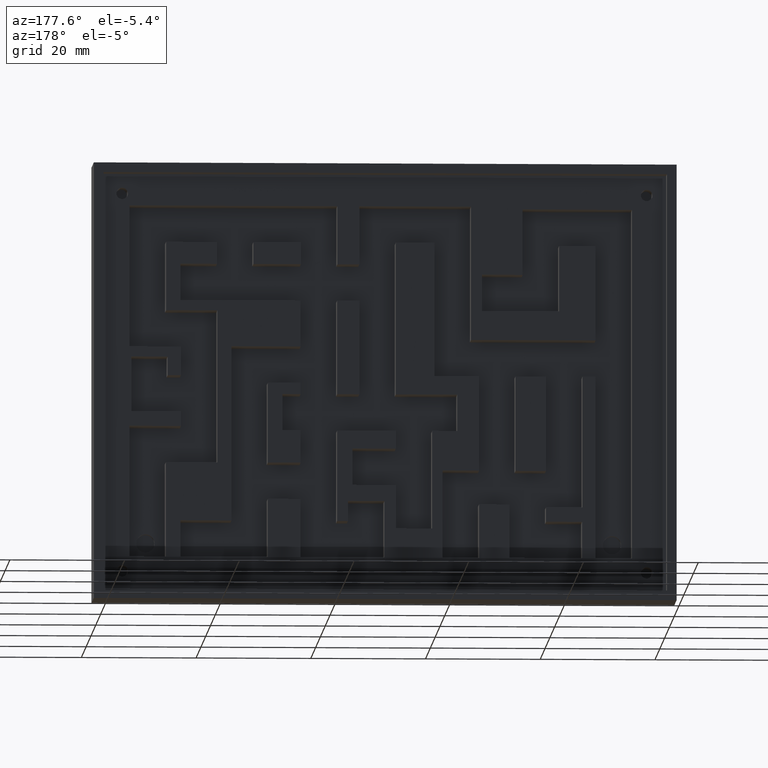
[diagram: clean part render]
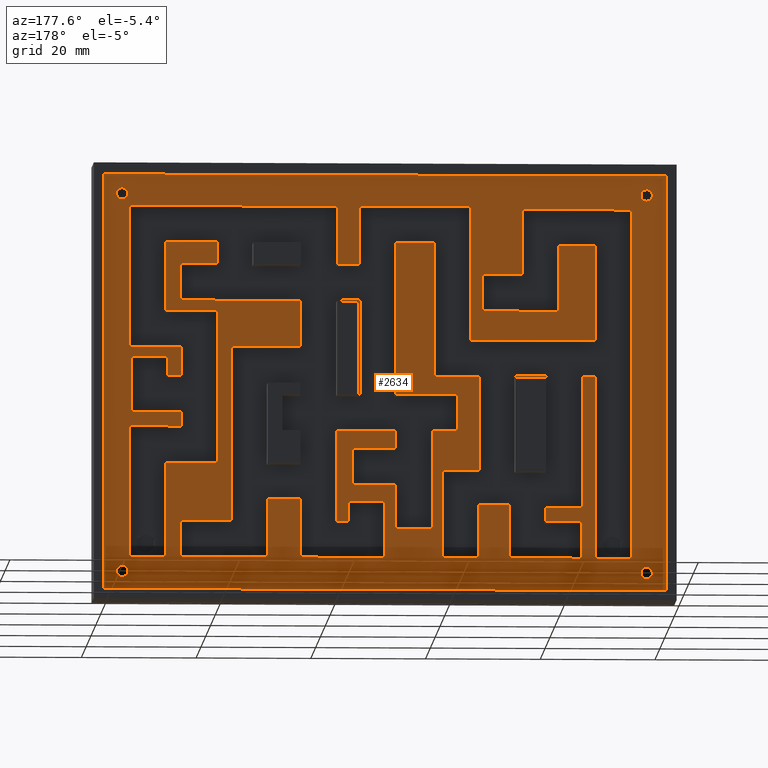
[diagram: same view with one face highlighted and labeled with its STEP entity id]
A machine part, auxiliary view. The second image highlights one B-rep face of the part: STEP entity #2634.
In plain terms, the highlighted planar face has unit normal (0, -1, 0).
Its self-contained STEP definition (entity closure, byte-faithful):
#21=FACE_BOUND('',#313,.T.);
#22=FACE_BOUND('',#314,.T.);
#23=FACE_BOUND('',#315,.T.);
#24=FACE_BOUND('',#316,.T.);
#25=FACE_BOUND('',#317,.T.);
#31=CIRCLE('',#2672,0.0393700787401575);
#33=CIRCLE('',#2676,0.0393700787401573);
#35=CIRCLE('',#2680,0.0393700787401575);
#37=CIRCLE('',#2684,0.0393700787401573);
#170=FACE_OUTER_BOUND('',#312,.T.);
#312=EDGE_LOOP('',(#2235,#2236,#2237,#2238));
#313=EDGE_LOOP('',(#2239));
#314=EDGE_LOOP('',(#2240));
#315=EDGE_LOOP('',(#2241));
#316=EDGE_LOOP('',(#2242));
#317=EDGE_LOOP('',(#2243,#2244,#2245,#2246,#2247,#2248,#2249,#2250,#2251,
#2252,#2253,#2254,#2255,#2256,#2257,#2258,#2259,#2260,#2261,#2262,#2263,
#2264,#2265,#2266,#2267,#2268,#2269,#2270,#2271,#2272,#2273,#2274,#2275,
#2276,#2277,#2278,#2279,#2280,#2281,#2282,#2283,#2284,#2285,#2286,#2287,
#2288,#2289,#2290,#2291,#2292,#2293,#2294,#2295,#2296,#2297,#2298,#2299,
#2300,#2301,#2302,#2303,#2304,#2305,#2306,#2307,#2308,#2309,#2310,#2311,
#2312,#2313,#2314,#2315,#2316,#2317,#2318,#2319,#2320,#2321,#2322,#2323,
#2324,#2325,#2326,#2327,#2328,#2329,#2330));
#331=LINE('',#3467,#685);
#335=LINE('',#3474,#689);
#338=LINE('',#3480,#692);
#340=LINE('',#3483,#694);
#407=LINE('',#3649,#761);
#411=LINE('',#3657,#765);
#414=LINE('',#3663,#768);
#417=LINE('',#3669,#771);
#420=LINE('',#3675,#774);
#423=LINE('',#3681,#777);
#426=LINE('',#3687,#780);
#429=LINE('',#3693,#783);
#432=LINE('',#3699,#786);
#435=LINE('',#3705,#789);
#438=LINE('',#3711,#792);
#441=LINE('',#3717,#795);
#444=LINE('',#3723,#798);
#447=LINE('',#3729,#801);
#450=LINE('',#3735,#804);
#453=LINE('',#3741,#807);
#456=LINE('',#3747,#810);
#459=LINE('',#3753,#813);
#462=LINE('',#3759,#816);
#465=LINE('',#3765,#819);
#468=LINE('',#3771,#822);
#471=LINE('',#3777,#825);
#474=LINE('',#3783,#828);
#477=LINE('',#3789,#831);
#480=LINE('',#3795,#834);
#483=LINE('',#3801,#837);
#486=LINE('',#3807,#840);
#489=LINE('',#3813,#843);
#492=LINE('',#3819,#846);
#495=LINE('',#3825,#849);
#498=LINE('',#3831,#852);
#501=LINE('',#3837,#855);
#504=LINE('',#3843,#858);
#507=LINE('',#3849,#861);
#510=LINE('',#3855,#864);
#513=LINE('',#3861,#867);
#516=LINE('',#3867,#870);
#519=LINE('',#3873,#873);
#522=LINE('',#3879,#876);
#525=LINE('',#3885,#879);
#528=LINE('',#3891,#882);
#531=LINE('',#3897,#885);
#534=LINE('',#3903,#888);
#537=LINE('',#3909,#891);
#540=LINE('',#3915,#894);
#543=LINE('',#3921,#897);
#546=LINE('',#3927,#900);
#549=LINE('',#3933,#903);
#552=LINE('',#3939,#906);
#555=LINE('',#3945,#909);
#558=LINE('',#3951,#912);
#561=LINE('',#3957,#915);
#564=LINE('',#3963,#918);
#567=LINE('',#3969,#921);
#570=LINE('',#3975,#924);
#573=LINE('',#3981,#927);
#576=LINE('',#3987,#930);
#579=LINE('',#3993,#933);
#582=LINE('',#3999,#936);
#585=LINE('',#4005,#939);
#588=LINE('',#4011,#942);
#591=LINE('',#4017,#945);
#594=LINE('',#4023,#948);
#597=LINE('',#4029,#951);
#600=LINE('',#4035,#954);
#603=LINE('',#4041,#957);
#606=LINE('',#4047,#960);
#609=LINE('',#4053,#963);
#612=LINE('',#4059,#966);
#615=LINE('',#4065,#969);
#618=LINE('',#4071,#972);
#621=LINE('',#4077,#975);
#624=LINE('',#4083,#978);
#627=LINE('',#4089,#981);
#630=LINE('',#4095,#984);
#633=LINE('',#4101,#987);
#636=LINE('',#4107,#990);
#639=LINE('',#4113,#993);
#642=LINE('',#4119,#996);
#645=LINE('',#4125,#999);
#648=LINE('',#4131,#1002);
#651=LINE('',#4137,#1005);
#654=LINE('',#4143,#1008);
#657=LINE('',#4149,#1011);
#660=LINE('',#4155,#1014);
#663=LINE('',#4161,#1017);
#666=LINE('',#4167,#1020);
#669=LINE('',#4172,#1023);
#685=VECTOR('',#2813,0.393700787401575);
#689=VECTOR('',#2819,0.393700787401575);
#692=VECTOR('',#2824,0.393700787401575);
#694=VECTOR('',#2828,0.393700787401575);
#761=VECTOR('',#2985,0.393700787401575);
#765=VECTOR('',#2991,0.393700787401575);
#768=VECTOR('',#2996,0.393700787401575);
#771=VECTOR('',#3001,0.393700787401575);
#774=VECTOR('',#3006,0.393700787401575);
#777=VECTOR('',#3011,0.393700787401575);
#780=VECTOR('',#3016,0.393700787401575);
#783=VECTOR('',#3021,0.393700787401575);
#786=VECTOR('',#3026,0.393700787401575);
#789=VECTOR('',#3031,0.393700787401575);
#792=VECTOR('',#3036,0.393700787401575);
#795=VECTOR('',#3041,0.393700787401575);
#798=VECTOR('',#3046,0.393700787401575);
#801=VECTOR('',#3051,0.393700787401575);
#804=VECTOR('',#3056,0.393700787401575);
#807=VECTOR('',#3061,0.393700787401575);
#810=VECTOR('',#3066,0.393700787401575);
#813=VECTOR('',#3071,0.393700787401575);
#816=VECTOR('',#3076,0.393700787401575);
#819=VECTOR('',#3081,0.393700787401575);
#822=VECTOR('',#3086,0.393700787401575);
#825=VECTOR('',#3091,0.393700787401575);
#828=VECTOR('',#3096,0.393700787401575);
#831=VECTOR('',#3101,0.393700787401575);
#834=VECTOR('',#3106,0.393700787401575);
#837=VECTOR('',#3111,0.393700787401575);
#840=VECTOR('',#3116,0.393700787401575);
#843=VECTOR('',#3121,0.393700787401575);
#846=VECTOR('',#3126,0.393700787401575);
#849=VECTOR('',#3131,0.393700787401575);
#852=VECTOR('',#3136,0.393700787401575);
#855=VECTOR('',#3141,0.393700787401575);
#858=VECTOR('',#3146,0.393700787401575);
#861=VECTOR('',#3151,0.393700787401575);
#864=VECTOR('',#3156,0.393700787401575);
#867=VECTOR('',#3161,0.393700787401575);
#870=VECTOR('',#3166,0.393700787401575);
#873=VECTOR('',#3171,0.393700787401575);
#876=VECTOR('',#3176,0.393700787401575);
#879=VECTOR('',#3181,0.393700787401575);
#882=VECTOR('',#3186,0.393700787401575);
#885=VECTOR('',#3191,0.393700787401575);
#888=VECTOR('',#3196,0.393700787401575);
#891=VECTOR('',#3201,0.393700787401575);
#894=VECTOR('',#3206,0.393700787401575);
#897=VECTOR('',#3211,0.393700787401575);
#900=VECTOR('',#3216,0.393700787401575);
#903=VECTOR('',#3221,0.393700787401575);
#906=VECTOR('',#3226,0.393700787401575);
#909=VECTOR('',#3231,0.393700787401575);
#912=VECTOR('',#3236,0.393700787401575);
#915=VECTOR('',#3241,0.393700787401575);
#918=VECTOR('',#3246,0.393700787401575);
#921=VECTOR('',#3251,0.393700787401575);
#924=VECTOR('',#3256,0.393700787401575);
#927=VECTOR('',#3261,0.393700787401575);
#930=VECTOR('',#3266,0.393700787401575);
#933=VECTOR('',#3271,0.393700787401575);
#936=VECTOR('',#3276,0.393700787401575);
#939=VECTOR('',#3281,0.393700787401575);
#942=VECTOR('',#3286,0.393700787401575);
#945=VECTOR('',#3291,0.393700787401575);
#948=VECTOR('',#3296,0.393700787401575);
#951=VECTOR('',#3301,0.393700787401575);
#954=VECTOR('',#3306,0.393700787401575);
#957=VECTOR('',#3311,0.393700787401575);
#960=VECTOR('',#3316,0.393700787401575);
#963=VECTOR('',#3321,0.393700787401575);
#966=VECTOR('',#3326,0.393700787401575);
#969=VECTOR('',#3331,0.393700787401575);
#972=VECTOR('',#3336,0.393700787401575);
#975=VECTOR('',#3341,0.393700787401575);
#978=VECTOR('',#3346,0.393700787401575);
#981=VECTOR('',#3351,0.393700787401575);
#984=VECTOR('',#3356,0.393700787401575);
#987=VECTOR('',#3361,0.393700787401575);
#990=VECTOR('',#3366,0.393700787401575);
#993=VECTOR('',#3371,0.393700787401575);
#996=VECTOR('',#3376,0.393700787401575);
#999=VECTOR('',#3381,0.393700787401575);
#1002=VECTOR('',#3386,0.393700787401575);
#1005=VECTOR('',#3391,0.393700787401575);
#1008=VECTOR('',#3396,0.393700787401575);
#1011=VECTOR('',#3401,0.393700787401575);
#1014=VECTOR('',#3406,0.393700787401575);
#1017=VECTOR('',#3411,0.393700787401575);
#1020=VECTOR('',#3416,0.393700787401575);
#1023=VECTOR('',#3421,0.393700787401575);
#1039=VERTEX_POINT('',#3464);
#1040=VERTEX_POINT('',#3466);
#1042=VERTEX_POINT('',#3472);
#1044=VERTEX_POINT('',#3478);
#1049=VERTEX_POINT('',#3499);
#1051=VERTEX_POINT('',#3506);
#1053=VERTEX_POINT('',#3513);
#1055=VERTEX_POINT('',#3520);
#1097=VERTEX_POINT('',#3647);
#1098=VERTEX_POINT('',#3648);
#1101=VERTEX_POINT('',#3656);
#1103=VERTEX_POINT('',#3662);
#1105=VERTEX_POINT('',#3668);
#1107=VERTEX_POINT('',#3674);
#1109=VERTEX_POINT('',#3680);
#1111=VERTEX_POINT('',#3686);
#1113=VERTEX_POINT('',#3692);
#1115=VERTEX_POINT('',#3698);
#1117=VERTEX_POINT('',#3704);
#1119=VERTEX_POINT('',#3710);
#1121=VERTEX_POINT('',#3716);
#1123=VERTEX_POINT('',#3722);
#1125=VERTEX_POINT('',#3728);
#1127=VERTEX_POINT('',#3734);
#1129=VERTEX_POINT('',#3740);
#1131=VERTEX_POINT('',#3746);
#1133=VERTEX_POINT('',#3752);
#1135=VERTEX_POINT('',#3758);
#1137=VERTEX_POINT('',#3764);
#1139=VERTEX_POINT('',#3770);
#1141=VERTEX_POINT('',#3776);
#1143=VERTEX_POINT('',#3782);
#1145=VERTEX_POINT('',#3788);
#1147=VERTEX_POINT('',#3794);
#1149=VERTEX_POINT('',#3800);
#1151=VERTEX_POINT('',#3806);
#1153=VERTEX_POINT('',#3812);
#1155=VERTEX_POINT('',#3818);
#1157=VERTEX_POINT('',#3824);
#1159=VERTEX_POINT('',#3830);
#1161=VERTEX_POINT('',#3836);
#1163=VERTEX_POINT('',#3842);
#1165=VERTEX_POINT('',#3848);
#1167=VERTEX_POINT('',#3854);
#1169=VERTEX_POINT('',#3860);
#1171=VERTEX_POINT('',#3866);
#1173=VERTEX_POINT('',#3872);
#1175=VERTEX_POINT('',#3878);
#1177=VERTEX_POINT('',#3884);
#1179=VERTEX_POINT('',#3890);
#1181=VERTEX_POINT('',#3896);
#1183=VERTEX_POINT('',#3902);
#1185=VERTEX_POINT('',#3908);
#1187=VERTEX_POINT('',#3914);
#1189=VERTEX_POINT('',#3920);
#1191=VERTEX_POINT('',#3926);
#1193=VERTEX_POINT('',#3932);
#1195=VERTEX_POINT('',#3938);
#1197=VERTEX_POINT('',#3944);
#1199=VERTEX_POINT('',#3950);
#1201=VERTEX_POINT('',#3956);
#1203=VERTEX_POINT('',#3962);
#1205=VERTEX_POINT('',#3968);
#1207=VERTEX_POINT('',#3974);
#1209=VERTEX_POINT('',#3980);
#1211=VERTEX_POINT('',#3986);
#1213=VERTEX_POINT('',#3992);
#1215=VERTEX_POINT('',#3998);
#1217=VERTEX_POINT('',#4004);
#1219=VERTEX_POINT('',#4010);
#1221=VERTEX_POINT('',#4016);
#1223=VERTEX_POINT('',#4022);
#1225=VERTEX_POINT('',#4028);
#1227=VERTEX_POINT('',#4034);
#1229=VERTEX_POINT('',#4040);
#1231=VERTEX_POINT('',#4046);
#1233=VERTEX_POINT('',#4052);
#1235=VERTEX_POINT('',#4058);
#1237=VERTEX_POINT('',#4064);
#1239=VERTEX_POINT('',#4070);
#1241=VERTEX_POINT('',#4076);
#1243=VERTEX_POINT('',#4082);
#1245=VERTEX_POINT('',#4088);
#1247=VERTEX_POINT('',#4094);
#1249=VERTEX_POINT('',#4100);
#1251=VERTEX_POINT('',#4106);
#1253=VERTEX_POINT('',#4112);
#1255=VERTEX_POINT('',#4118);
#1257=VERTEX_POINT('',#4124);
#1259=VERTEX_POINT('',#4130);
#1261=VERTEX_POINT('',#4136);
#1263=VERTEX_POINT('',#4142);
#1265=VERTEX_POINT('',#4148);
#1267=VERTEX_POINT('',#4154);
#1269=VERTEX_POINT('',#4160);
#1271=VERTEX_POINT('',#4166);
#1283=EDGE_CURVE('',#1039,#1040,#331,.T.);
#1287=EDGE_CURVE('',#1042,#1039,#335,.T.);
#1290=EDGE_CURVE('',#1044,#1042,#338,.T.);
#1292=EDGE_CURVE('',#1040,#1044,#340,.T.);
#1299=EDGE_CURVE('',#1049,#1049,#31,.T.);
#1302=EDGE_CURVE('',#1051,#1051,#33,.T.);
#1305=EDGE_CURVE('',#1053,#1053,#35,.T.);
#1308=EDGE_CURVE('',#1055,#1055,#37,.T.);
#1371=EDGE_CURVE('',#1097,#1098,#407,.T.);
#1375=EDGE_CURVE('',#1101,#1097,#411,.T.);
#1378=EDGE_CURVE('',#1103,#1101,#414,.T.);
#1381=EDGE_CURVE('',#1105,#1103,#417,.T.);
#1384=EDGE_CURVE('',#1107,#1105,#420,.T.);
#1387=EDGE_CURVE('',#1109,#1107,#423,.T.);
#1390=EDGE_CURVE('',#1111,#1109,#426,.T.);
#1393=EDGE_CURVE('',#1113,#1111,#429,.T.);
#1396=EDGE_CURVE('',#1115,#1113,#432,.T.);
#1399=EDGE_CURVE('',#1117,#1115,#435,.T.);
#1402=EDGE_CURVE('',#1119,#1117,#438,.T.);
#1405=EDGE_CURVE('',#1121,#1119,#441,.T.);
#1408=EDGE_CURVE('',#1123,#1121,#444,.T.);
#1411=EDGE_CURVE('',#1125,#1123,#447,.T.);
#1414=EDGE_CURVE('',#1127,#1125,#450,.T.);
#1417=EDGE_CURVE('',#1129,#1127,#453,.T.);
#1420=EDGE_CURVE('',#1131,#1129,#456,.T.);
#1423=EDGE_CURVE('',#1133,#1131,#459,.T.);
#1426=EDGE_CURVE('',#1135,#1133,#462,.T.);
#1429=EDGE_CURVE('',#1137,#1135,#465,.T.);
#1432=EDGE_CURVE('',#1139,#1137,#468,.T.);
#1435=EDGE_CURVE('',#1141,#1139,#471,.T.);
#1438=EDGE_CURVE('',#1143,#1141,#474,.T.);
#1441=EDGE_CURVE('',#1145,#1143,#477,.T.);
#1444=EDGE_CURVE('',#1147,#1145,#480,.T.);
#1447=EDGE_CURVE('',#1149,#1147,#483,.T.);
#1450=EDGE_CURVE('',#1151,#1149,#486,.T.);
#1453=EDGE_CURVE('',#1153,#1151,#489,.T.);
#1456=EDGE_CURVE('',#1155,#1153,#492,.T.);
#1459=EDGE_CURVE('',#1157,#1155,#495,.T.);
#1462=EDGE_CURVE('',#1159,#1157,#498,.T.);
#1465=EDGE_CURVE('',#1161,#1159,#501,.T.);
#1468=EDGE_CURVE('',#1163,#1161,#504,.T.);
#1471=EDGE_CURVE('',#1165,#1163,#507,.T.);
#1474=EDGE_CURVE('',#1167,#1165,#510,.T.);
#1477=EDGE_CURVE('',#1169,#1167,#513,.T.);
#1480=EDGE_CURVE('',#1171,#1169,#516,.T.);
#1483=EDGE_CURVE('',#1173,#1171,#519,.T.);
#1486=EDGE_CURVE('',#1175,#1173,#522,.T.);
#1489=EDGE_CURVE('',#1177,#1175,#525,.T.);
#1492=EDGE_CURVE('',#1179,#1177,#528,.T.);
#1495=EDGE_CURVE('',#1181,#1179,#531,.T.);
#1498=EDGE_CURVE('',#1183,#1181,#534,.T.);
#1501=EDGE_CURVE('',#1185,#1183,#537,.T.);
#1504=EDGE_CURVE('',#1187,#1185,#540,.T.);
#1507=EDGE_CURVE('',#1189,#1187,#543,.T.);
#1510=EDGE_CURVE('',#1191,#1189,#546,.T.);
#1513=EDGE_CURVE('',#1193,#1191,#549,.T.);
#1516=EDGE_CURVE('',#1195,#1193,#552,.T.);
#1519=EDGE_CURVE('',#1197,#1195,#555,.T.);
#1522=EDGE_CURVE('',#1199,#1197,#558,.T.);
#1525=EDGE_CURVE('',#1201,#1199,#561,.T.);
#1528=EDGE_CURVE('',#1203,#1201,#564,.T.);
#1531=EDGE_CURVE('',#1205,#1203,#567,.T.);
#1534=EDGE_CURVE('',#1207,#1205,#570,.T.);
#1537=EDGE_CURVE('',#1209,#1207,#573,.T.);
#1540=EDGE_CURVE('',#1211,#1209,#576,.T.);
#1543=EDGE_CURVE('',#1213,#1211,#579,.T.);
#1546=EDGE_CURVE('',#1215,#1213,#582,.T.);
#1549=EDGE_CURVE('',#1217,#1215,#585,.T.);
#1552=EDGE_CURVE('',#1219,#1217,#588,.T.);
#1555=EDGE_CURVE('',#1221,#1219,#591,.T.);
#1558=EDGE_CURVE('',#1223,#1221,#594,.T.);
#1561=EDGE_CURVE('',#1225,#1223,#597,.T.);
#1564=EDGE_CURVE('',#1227,#1225,#600,.T.);
#1567=EDGE_CURVE('',#1229,#1227,#603,.T.);
#1570=EDGE_CURVE('',#1231,#1229,#606,.T.);
#1573=EDGE_CURVE('',#1233,#1231,#609,.T.);
#1576=EDGE_CURVE('',#1235,#1233,#612,.T.);
#1579=EDGE_CURVE('',#1237,#1235,#615,.T.);
#1582=EDGE_CURVE('',#1239,#1237,#618,.T.);
#1585=EDGE_CURVE('',#1241,#1239,#621,.T.);
#1588=EDGE_CURVE('',#1243,#1241,#624,.T.);
#1591=EDGE_CURVE('',#1245,#1243,#627,.T.);
#1594=EDGE_CURVE('',#1247,#1245,#630,.T.);
#1597=EDGE_CURVE('',#1249,#1247,#633,.T.);
#1600=EDGE_CURVE('',#1251,#1249,#636,.T.);
#1603=EDGE_CURVE('',#1253,#1251,#639,.T.);
#1606=EDGE_CURVE('',#1255,#1253,#642,.T.);
#1609=EDGE_CURVE('',#1257,#1255,#645,.T.);
#1612=EDGE_CURVE('',#1259,#1257,#648,.T.);
#1615=EDGE_CURVE('',#1261,#1259,#651,.T.);
#1618=EDGE_CURVE('',#1263,#1261,#654,.T.);
#1621=EDGE_CURVE('',#1265,#1263,#657,.T.);
#1624=EDGE_CURVE('',#1267,#1265,#660,.T.);
#1627=EDGE_CURVE('',#1269,#1267,#663,.T.);
#1630=EDGE_CURVE('',#1271,#1269,#666,.T.);
#1633=EDGE_CURVE('',#1098,#1271,#669,.T.);
#2235=ORIENTED_EDGE('',*,*,#1292,.F.);
#2236=ORIENTED_EDGE('',*,*,#1283,.F.);
#2237=ORIENTED_EDGE('',*,*,#1287,.F.);
#2238=ORIENTED_EDGE('',*,*,#1290,.F.);
#2239=ORIENTED_EDGE('',*,*,#1299,.T.);
#2240=ORIENTED_EDGE('',*,*,#1302,.T.);
#2241=ORIENTED_EDGE('',*,*,#1305,.T.);
#2242=ORIENTED_EDGE('',*,*,#1308,.T.);
#2243=ORIENTED_EDGE('',*,*,#1371,.T.);
#2244=ORIENTED_EDGE('',*,*,#1633,.T.);
#2245=ORIENTED_EDGE('',*,*,#1630,.T.);
#2246=ORIENTED_EDGE('',*,*,#1627,.T.);
#2247=ORIENTED_EDGE('',*,*,#1624,.T.);
#2248=ORIENTED_EDGE('',*,*,#1621,.T.);
#2249=ORIENTED_EDGE('',*,*,#1618,.T.);
#2250=ORIENTED_EDGE('',*,*,#1615,.T.);
#2251=ORIENTED_EDGE('',*,*,#1612,.T.);
#2252=ORIENTED_EDGE('',*,*,#1609,.T.);
#2253=ORIENTED_EDGE('',*,*,#1606,.T.);
#2254=ORIENTED_EDGE('',*,*,#1603,.T.);
#2255=ORIENTED_EDGE('',*,*,#1600,.T.);
#2256=ORIENTED_EDGE('',*,*,#1597,.T.);
#2257=ORIENTED_EDGE('',*,*,#1594,.T.);
#2258=ORIENTED_EDGE('',*,*,#1591,.T.);
#2259=ORIENTED_EDGE('',*,*,#1588,.T.);
#2260=ORIENTED_EDGE('',*,*,#1585,.T.);
#2261=ORIENTED_EDGE('',*,*,#1582,.T.);
#2262=ORIENTED_EDGE('',*,*,#1579,.T.);
#2263=ORIENTED_EDGE('',*,*,#1576,.T.);
#2264=ORIENTED_EDGE('',*,*,#1573,.T.);
#2265=ORIENTED_EDGE('',*,*,#1570,.T.);
#2266=ORIENTED_EDGE('',*,*,#1567,.T.);
#2267=ORIENTED_EDGE('',*,*,#1564,.T.);
#2268=ORIENTED_EDGE('',*,*,#1561,.T.);
#2269=ORIENTED_EDGE('',*,*,#1558,.T.);
#2270=ORIENTED_EDGE('',*,*,#1555,.T.);
#2271=ORIENTED_EDGE('',*,*,#1552,.T.);
#2272=ORIENTED_EDGE('',*,*,#1549,.T.);
#2273=ORIENTED_EDGE('',*,*,#1546,.T.);
#2274=ORIENTED_EDGE('',*,*,#1543,.T.);
#2275=ORIENTED_EDGE('',*,*,#1540,.T.);
#2276=ORIENTED_EDGE('',*,*,#1537,.T.);
#2277=ORIENTED_EDGE('',*,*,#1534,.T.);
#2278=ORIENTED_EDGE('',*,*,#1531,.T.);
#2279=ORIENTED_EDGE('',*,*,#1528,.T.);
#2280=ORIENTED_EDGE('',*,*,#1525,.T.);
#2281=ORIENTED_EDGE('',*,*,#1522,.T.);
#2282=ORIENTED_EDGE('',*,*,#1519,.T.);
#2283=ORIENTED_EDGE('',*,*,#1516,.T.);
#2284=ORIENTED_EDGE('',*,*,#1513,.T.);
#2285=ORIENTED_EDGE('',*,*,#1510,.T.);
#2286=ORIENTED_EDGE('',*,*,#1507,.T.);
#2287=ORIENTED_EDGE('',*,*,#1504,.T.);
#2288=ORIENTED_EDGE('',*,*,#1501,.T.);
#2289=ORIENTED_EDGE('',*,*,#1498,.T.);
#2290=ORIENTED_EDGE('',*,*,#1495,.T.);
#2291=ORIENTED_EDGE('',*,*,#1492,.T.);
#2292=ORIENTED_EDGE('',*,*,#1489,.T.);
#2293=ORIENTED_EDGE('',*,*,#1486,.T.);
#2294=ORIENTED_EDGE('',*,*,#1483,.T.);
#2295=ORIENTED_EDGE('',*,*,#1480,.T.);
#2296=ORIENTED_EDGE('',*,*,#1477,.T.);
#2297=ORIENTED_EDGE('',*,*,#1474,.T.);
#2298=ORIENTED_EDGE('',*,*,#1471,.T.);
#2299=ORIENTED_EDGE('',*,*,#1468,.T.);
#2300=ORIENTED_EDGE('',*,*,#1465,.T.);
#2301=ORIENTED_EDGE('',*,*,#1462,.T.);
#2302=ORIENTED_EDGE('',*,*,#1459,.T.);
#2303=ORIENTED_EDGE('',*,*,#1456,.T.);
#2304=ORIENTED_EDGE('',*,*,#1453,.T.);
#2305=ORIENTED_EDGE('',*,*,#1450,.T.);
#2306=ORIENTED_EDGE('',*,*,#1447,.T.);
#2307=ORIENTED_EDGE('',*,*,#1444,.T.);
#2308=ORIENTED_EDGE('',*,*,#1441,.T.);
#2309=ORIENTED_EDGE('',*,*,#1438,.T.);
#2310=ORIENTED_EDGE('',*,*,#1435,.T.);
#2311=ORIENTED_EDGE('',*,*,#1432,.T.);
#2312=ORIENTED_EDGE('',*,*,#1429,.T.);
#2313=ORIENTED_EDGE('',*,*,#1426,.T.);
#2314=ORIENTED_EDGE('',*,*,#1423,.T.);
#2315=ORIENTED_EDGE('',*,*,#1420,.T.);
#2316=ORIENTED_EDGE('',*,*,#1417,.T.);
#2317=ORIENTED_EDGE('',*,*,#1414,.T.);
#2318=ORIENTED_EDGE('',*,*,#1411,.T.);
#2319=ORIENTED_EDGE('',*,*,#1408,.T.);
#2320=ORIENTED_EDGE('',*,*,#1405,.T.);
#2321=ORIENTED_EDGE('',*,*,#1402,.T.);
#2322=ORIENTED_EDGE('',*,*,#1399,.T.);
#2323=ORIENTED_EDGE('',*,*,#1396,.T.);
#2324=ORIENTED_EDGE('',*,*,#1393,.T.);
#2325=ORIENTED_EDGE('',*,*,#1390,.T.);
#2326=ORIENTED_EDGE('',*,*,#1387,.T.);
#2327=ORIENTED_EDGE('',*,*,#1384,.T.);
#2328=ORIENTED_EDGE('',*,*,#1381,.T.);
#2329=ORIENTED_EDGE('',*,*,#1378,.T.);
#2330=ORIENTED_EDGE('',*,*,#1375,.T.);
#2498=PLANE('',#2796);
#2634=ADVANCED_FACE('',(#170,#21,#22,#23,#24,#25),#2498,.F.);
#2672=AXIS2_PLACEMENT_3D('',#3500,#2849,#2850);
#2676=AXIS2_PLACEMENT_3D('',#3507,#2858,#2859);
#2680=AXIS2_PLACEMENT_3D('',#3514,#2867,#2868);
#2684=AXIS2_PLACEMENT_3D('',#3521,#2876,#2877);
#2796=AXIS2_PLACEMENT_3D('',#4175,#3425,#3426);
#2813=DIRECTION('',(0.,0.,-1.));
#2819=DIRECTION('',(-1.,0.,0.));
#2824=DIRECTION('',(0.,0.,1.));
#2828=DIRECTION('',(1.,0.,0.));
#2849=DIRECTION('center_axis',(0.,-1.,0.));
#2850=DIRECTION('ref_axis',(-1.,0.,0.));
#2858=DIRECTION('center_axis',(0.,-1.,0.));
#2859=DIRECTION('ref_axis',(-1.,0.,0.));
#2867=DIRECTION('center_axis',(0.,-1.,0.));
#2868=DIRECTION('ref_axis',(-1.,0.,0.));
#2876=DIRECTION('center_axis',(0.,-1.,0.));
#2877=DIRECTION('ref_axis',(-1.,0.,0.));
#2985=DIRECTION('',(-1.,0.,0.));
#2991=DIRECTION('',(0.,0.,1.));
#2996=DIRECTION('',(1.,0.,0.));
#3001=DIRECTION('',(0.,0.,-1.));
#3006=DIRECTION('',(1.,0.,0.));
#3011=DIRECTION('',(0.,0.,1.));
#3016=DIRECTION('',(1.,0.,0.));
#3021=DIRECTION('',(0.,0.,-1.));
#3026=DIRECTION('',(-1.,0.,0.));
#3031=DIRECTION('',(0.,0.,-1.));
#3036=DIRECTION('',(1.,0.,0.));
#3041=DIRECTION('',(0.,0.,-1.));
#3046=DIRECTION('',(1.,0.,0.));
#3051=DIRECTION('',(0.,0.,1.));
#3056=DIRECTION('',(1.,0.,0.));
#3061=DIRECTION('',(0.,0.,-1.));
#3066=DIRECTION('',(-1.,0.,0.));
#3071=DIRECTION('',(0.,0.,1.));
#3076=DIRECTION('',(-1.,0.,0.));
#3081=DIRECTION('',(0.,0.,1.));
#3086=DIRECTION('',(1.,0.,0.));
#3091=DIRECTION('',(0.,0.,-1.));
#3096=DIRECTION('',(1.,0.,0.));
#3101=DIRECTION('',(0.,0.,1.));
#3106=DIRECTION('',(-1.,0.,0.));
#3111=DIRECTION('',(0.,0.,-1.));
#3116=DIRECTION('',(-1.,0.,0.));
#3121=DIRECTION('',(0.,0.,-1.));
#3126=DIRECTION('',(-1.,0.,0.));
#3131=DIRECTION('',(-2.26334810540391E-16,0.,1.));
#3136=DIRECTION('',(-1.,0.,0.));
#3141=DIRECTION('',(0.,0.,-1.));
#3146=DIRECTION('',(-1.,0.,0.));
#3151=DIRECTION('',(0.,0.,1.));
#3156=DIRECTION('',(-1.,0.,0.));
#3161=DIRECTION('',(0.,0.,1.));
#3166=DIRECTION('',(1.,0.,0.));
#3171=DIRECTION('',(0.,0.,1.));
#3176=DIRECTION('',(-1.,0.,0.));
#3181=DIRECTION('',(0.,0.,-1.));
#3186=DIRECTION('',(-1.,0.,0.));
#3191=DIRECTION('',(0.,0.,1.));
#3196=DIRECTION('',(1.,0.,0.));
#3201=DIRECTION('',(0.,0.,1.));
#3206=DIRECTION('',(-1.,0.,0.));
#3211=DIRECTION('',(0.,0.,1.));
#3216=DIRECTION('',(1.,0.,0.));
#3221=DIRECTION('',(0.,0.,-1.));
#3226=DIRECTION('',(1.,0.,0.));
#3231=DIRECTION('',(0.,0.,-1.));
#3236=DIRECTION('',(-1.,0.,0.));
#3241=DIRECTION('',(0.,0.,-1.));
#3246=DIRECTION('',(1.,0.,0.));
#3251=DIRECTION('',(0.,0.,1.));
#3256=DIRECTION('',(-1.,0.,0.));
#3261=DIRECTION('',(0.,0.,1.));
#3266=DIRECTION('',(1.,0.,0.));
#3271=DIRECTION('',(0.,0.,1.));
#3276=DIRECTION('',(-1.,0.,0.));
#3281=DIRECTION('',(0.,0.,1.));
#3286=DIRECTION('',(-1.,0.,0.));
#3291=DIRECTION('',(0.,0.,1.));
#3296=DIRECTION('',(1.,0.,0.));
#3301=DIRECTION('',(0.,0.,-1.));
#3306=DIRECTION('',(1.,0.,0.));
#3311=DIRECTION('',(0.,0.,1.));
#3316=DIRECTION('',(1.,0.,0.));
#3321=DIRECTION('',(0.,0.,-1.));
#3326=DIRECTION('',(-1.,0.,0.));
#3331=DIRECTION('',(0.,0.,1.));
#3336=DIRECTION('',(-1.,0.,0.));
#3341=DIRECTION('',(0.,0.,-1.));
#3346=DIRECTION('',(1.,0.,-5.20321334962477E-16));
#3351=DIRECTION('',(3.79061788874207E-16,0.,1.));
#3356=DIRECTION('',(-1.,0.,0.));
#3361=DIRECTION('',(0.,0.,1.));
#3366=DIRECTION('',(1.,0.,0.));
#3371=DIRECTION('',(3.79061788874207E-16,0.,1.));
#3376=DIRECTION('',(1.,0.,0.));
#3381=DIRECTION('',(0.,0.,-1.));
#3386=DIRECTION('',(1.,0.,-5.20321334962477E-16));
#3391=DIRECTION('',(0.,0.,-1.));
#3396=DIRECTION('',(-1.,0.,0.));
#3401=DIRECTION('',(0.,0.,-1.));
#3406=DIRECTION('',(1.,0.,0.));
#3411=DIRECTION('',(0.,0.,1.));
#3416=DIRECTION('',(1.,0.,0.));
#3421=DIRECTION('',(0.,0.,1.));
#3425=DIRECTION('center_axis',(0.,-1.,0.));
#3426=DIRECTION('ref_axis',(0.,0.,-1.));
#3464=CARTESIAN_POINT('',(0.0659391311440645,0.26,-0.0659391311440645));
#3466=CARTESIAN_POINT('',(0.0659391311440645,0.26,-2.93406086885593));
#3467=CARTESIAN_POINT('',(0.0659391311440645,0.26,-0.0659391311440645));
#3472=CARTESIAN_POINT('',(3.93406086885594,0.26,-0.0659391311440645));
#3474=CARTESIAN_POINT('',(3.93406086885594,0.26,-0.0659391311440645));
#3478=CARTESIAN_POINT('',(3.93406086885594,0.26,-2.93406086885593));
#3480=CARTESIAN_POINT('',(3.93406086885594,0.26,-2.93406086885593));
#3483=CARTESIAN_POINT('',(0.0659391311440645,0.26,-2.93406086885593));
#3499=CARTESIAN_POINT('',(0.239370085123017,0.26,-0.20000000638286));
#3500=CARTESIAN_POINT('Origin',(0.20000000638286,0.26,-0.20000000638286));
#3506=CARTESIAN_POINT('',(3.8393700723573,0.26,-0.20000000638286));
#3507=CARTESIAN_POINT('Origin',(3.79999999361714,0.26,-0.20000000638286));
#3513=CARTESIAN_POINT('',(0.239370085123017,0.26,-2.80000008936003));
#3514=CARTESIAN_POINT('Origin',(0.20000000638286,0.26,-2.80000008936003));
#3520=CARTESIAN_POINT('',(3.8393700723573,0.26,-2.80000008936003));
#3521=CARTESIAN_POINT('Origin',(3.79999999361714,0.26,-2.80000008936003));
#3647=CARTESIAN_POINT('',(1.60000005106288,0.26,-2.10000006702003));
#3648=CARTESIAN_POINT('',(1.35000005106288,0.26,-2.10000006702003));
#3649=CARTESIAN_POINT('',(1.80000002553144,0.26,-2.10000006702003));
#3656=CARTESIAN_POINT('',(1.60000005106288,0.26,-2.7000000861686));
#3657=CARTESIAN_POINT('',(1.60000005106288,0.26,-2.1000000430843));
#3662=CARTESIAN_POINT('',(1.35000005106288,0.26,-2.7000000861686));
#3663=CARTESIAN_POINT('',(1.67500002553144,0.26,-2.7000000861686));
#3668=CARTESIAN_POINT('',(1.35000005106288,0.26,-2.33223878644758));
#3669=CARTESIAN_POINT('',(1.35000005106288,0.26,-1.91611939322379));
#3674=CARTESIAN_POINT('',(1.1402984264116,0.26,-2.33223878644758));
#3675=CARTESIAN_POINT('',(1.5701492132058,0.26,-2.33223878644758));
#3680=CARTESIAN_POINT('',(1.1402984264116,0.26,-2.7000000861686));
#3681=CARTESIAN_POINT('',(1.1402984264116,0.26,-2.1000000430843));
#3686=CARTESIAN_POINT('',(0.642984969874838,0.26,-2.7000000861686));
#3687=CARTESIAN_POINT('',(1.32149248493742,0.26,-2.7000000861686));
#3692=CARTESIAN_POINT('',(0.642984969874838,0.26,-2.4500000861686));
#3693=CARTESIAN_POINT('',(0.642984969874838,0.26,-1.9750000430843));
#3698=CARTESIAN_POINT('',(0.890298426411596,0.26,-2.4500000861686));
#3699=CARTESIAN_POINT('',(1.4451492132058,0.26,-2.4500000861686));
#3704=CARTESIAN_POINT('',(0.890298426411596,0.26,-2.35000006702003));
#3705=CARTESIAN_POINT('',(0.890298426411596,0.26,-1.92500003351001));
#3710=CARTESIAN_POINT('',(0.640298426411596,0.26,-2.35000006702003));
#3711=CARTESIAN_POINT('',(1.3201492132058,0.26,-2.35000006702003));
#3716=CARTESIAN_POINT('',(0.640298426411596,0.26,-1.45000003829716));
#3717=CARTESIAN_POINT('',(0.640298426411596,0.26,-1.47500001914858));
#3722=CARTESIAN_POINT('',(0.550000009574289,0.26,-1.45000003829716));
#3723=CARTESIAN_POINT('',(1.27500000478714,0.26,-1.45000003829716));
#3728=CARTESIAN_POINT('',(0.550000009574289,0.26,-2.7000000861686));
#3729=CARTESIAN_POINT('',(0.550000009574289,0.26,-2.1000000430843));
#3734=CARTESIAN_POINT('',(0.300000009574289,0.26,-2.7000000861686));
#3735=CARTESIAN_POINT('',(1.15000000478714,0.26,-2.7000000861686));
#3740=CARTESIAN_POINT('',(0.300000009574289,0.26,-0.300000009574289));
#3741=CARTESIAN_POINT('',(0.300000009574289,0.26,-0.900000004787145));
#3746=CARTESIAN_POINT('',(1.05059733016839,0.26,-0.300000009574289));
#3747=CARTESIAN_POINT('',(1.5252986650842,0.26,-0.300000009574289));
#3752=CARTESIAN_POINT('',(1.05059733016839,0.26,-0.750000031914298));
#3753=CARTESIAN_POINT('',(1.05059733016839,0.26,-1.12500001595715));
#3758=CARTESIAN_POINT('',(1.33014949974985,0.26,-0.750000031914298));
#3759=CARTESIAN_POINT('',(1.66507474987492,0.26,-0.750000031914298));
#3764=CARTESIAN_POINT('',(1.33014949974985,0.26,-1.0000000319143));
#3765=CARTESIAN_POINT('',(1.33014949974985,0.26,-1.25000001595715));
#3770=CARTESIAN_POINT('',(0.800597330168394,0.26,-1.0000000319143));
#3771=CARTESIAN_POINT('',(1.4002986650842,0.26,-1.0000000319143));
#3776=CARTESIAN_POINT('',(0.800597330168394,0.26,-0.550000009574289));
#3777=CARTESIAN_POINT('',(0.800597330168394,0.26,-1.02500000478714));
#3782=CARTESIAN_POINT('',(0.550000009574289,0.26,-0.550000009574289));
#3783=CARTESIAN_POINT('',(1.27500000478714,0.26,-0.550000009574289));
#3788=CARTESIAN_POINT('',(0.550000009574289,0.26,-1.20000003829716));
#3789=CARTESIAN_POINT('',(0.550000009574289,0.26,-1.35000001914858));
#3794=CARTESIAN_POINT('',(1.10000005106288,0.26,-1.20000003829716));
#3795=CARTESIAN_POINT('',(1.55000002553144,0.26,-1.20000003829716));
#3800=CARTESIAN_POINT('',(1.10000005106288,0.26,-1.19999877567508));
#3801=CARTESIAN_POINT('',(1.10000005106288,0.26,-1.34999938783754));
#3806=CARTESIAN_POINT('',(1.40504418296471,0.26,-1.19999877567508));
#3807=CARTESIAN_POINT('',(1.70252209148235,0.26,-1.19999877567508));
#3812=CARTESIAN_POINT('',(1.40504418296471,0.26,-0.282568519042755));
#3813=CARTESIAN_POINT('',(1.40504418296471,0.26,-0.891284259521377));
#3818=CARTESIAN_POINT('',(2.17203965050324,0.26,-0.282568519042755));
#3819=CARTESIAN_POINT('',(2.08601982525162,0.26,-0.282568519042755));
#3824=CARTESIAN_POINT('',(2.17203965050324,0.26,-0.682495663435515));
#3825=CARTESIAN_POINT('',(2.17203965050324,0.26,-1.09124783171776));
#3830=CARTESIAN_POINT('',(2.32270837768992,0.26,-0.682495663435515));
#3831=CARTESIAN_POINT('',(2.16135418884496,0.26,-0.682495663435515));
#3836=CARTESIAN_POINT('',(2.32270837768992,0.26,-0.282568519042755));
#3837=CARTESIAN_POINT('',(2.32270837768992,0.26,-0.891284259521377));
#3842=CARTESIAN_POINT('',(3.74831770654573,0.26,-0.282568519042755));
#3843=CARTESIAN_POINT('',(2.87415885327286,0.26,-0.282568519042755));
#3848=CARTESIAN_POINT('',(3.74831770654573,0.26,-1.00336637870182));
#3849=CARTESIAN_POINT('',(3.74831770654573,0.26,-1.25168318935091));
#3854=CARTESIAN_POINT('',(3.74853896138682,0.26,-1.00336637870182));
#3855=CARTESIAN_POINT('',(2.87426948069341,0.26,-1.00336637870182));
#3860=CARTESIAN_POINT('',(3.74853896138682,0.26,-1.25336637870182));
#3861=CARTESIAN_POINT('',(3.74853896138682,0.26,-1.37668318935091));
#3866=CARTESIAN_POINT('',(3.39634260416181,0.26,-1.25336637870182));
#3867=CARTESIAN_POINT('',(2.69817130208091,0.26,-1.25336637870182));
#3872=CARTESIAN_POINT('',(3.39634260416181,0.26,-1.45000005425431));
#3873=CARTESIAN_POINT('',(3.39634260416181,0.26,-1.47500002712715));
#3878=CARTESIAN_POINT('',(3.48765340358024,0.26,-1.45000005425431));
#3879=CARTESIAN_POINT('',(2.74382670179012,0.26,-1.45000005425431));
#3884=CARTESIAN_POINT('',(3.48765340358024,0.26,-1.32317129410233));
#3885=CARTESIAN_POINT('',(3.48765340358024,0.26,-1.41158564705117));
#3890=CARTESIAN_POINT('',(3.73765340358024,0.26,-1.32317129410233));
#3891=CARTESIAN_POINT('',(2.86882670179012,0.26,-1.32317129410233));
#3896=CARTESIAN_POINT('',(3.73765340358024,0.26,-1.70000005425431));
#3897=CARTESIAN_POINT('',(3.73765340358024,0.26,-1.60000002712715));
#3902=CARTESIAN_POINT('',(3.39634260416181,0.26,-1.70000005425431));
#3903=CARTESIAN_POINT('',(2.69817130208091,0.26,-1.70000005425431));
#3908=CARTESIAN_POINT('',(3.39634260416181,0.26,-1.80000005744574));
#3909=CARTESIAN_POINT('',(3.39634260416181,0.26,-1.65000002872287));
#3914=CARTESIAN_POINT('',(3.75000011170004,0.26,-1.80000005744574));
#3915=CARTESIAN_POINT('',(2.87500005585002,0.26,-1.80000005744574));
#3920=CARTESIAN_POINT('',(3.75000011170004,0.26,-2.7000000861686));
#3921=CARTESIAN_POINT('',(3.75000011170004,0.26,-2.1000000430843));
#3926=CARTESIAN_POINT('',(3.50000011170004,0.26,-2.7000000861686));
#3927=CARTESIAN_POINT('',(2.75000005585002,0.26,-2.7000000861686));
#3932=CARTESIAN_POINT('',(3.50000011170004,0.26,-2.05000005744574));
#3933=CARTESIAN_POINT('',(3.50000011170004,0.26,-1.77500002872287));
#3938=CARTESIAN_POINT('',(3.14634260416181,0.26,-2.05000005744574));
#3939=CARTESIAN_POINT('',(2.57317130208091,0.26,-2.05000005744574));
#3944=CARTESIAN_POINT('',(3.14634260416181,0.26,-1.00336637870182));
#3945=CARTESIAN_POINT('',(3.14634260416181,0.26,-1.25168318935091));
#3950=CARTESIAN_POINT('',(3.49831770654573,0.26,-1.00336637870182));
#3951=CARTESIAN_POINT('',(2.74915885327286,0.26,-1.00336637870182));
#3956=CARTESIAN_POINT('',(3.49831770654573,0.26,-0.532568519042755));
#3957=CARTESIAN_POINT('',(3.49831770654573,0.26,-1.01628425952138));
#3962=CARTESIAN_POINT('',(3.14907961095814,0.26,-0.532568519042755));
#3963=CARTESIAN_POINT('',(2.57453980547907,0.26,-0.532568519042755));
#3968=CARTESIAN_POINT('',(3.14907961095814,0.26,-0.682495663435515));
#3969=CARTESIAN_POINT('',(3.14907961095814,0.26,-1.09124783171776));
#3974=CARTESIAN_POINT('',(3.40000010850861,0.26,-0.682495663435515));
#3975=CARTESIAN_POINT('',(2.70000005425431,0.26,-0.682495663435515));
#3980=CARTESIAN_POINT('',(3.40000010850861,0.26,-0.932495663435515));
#3981=CARTESIAN_POINT('',(3.40000010850861,0.26,-1.21624783171776));
#3986=CARTESIAN_POINT('',(2.57444126043144,0.26,-0.932495663435515));
#3987=CARTESIAN_POINT('',(2.28722063021572,0.26,-0.932495663435515));
#3992=CARTESIAN_POINT('',(2.57444126043144,0.26,-1.25000004787145));
#3993=CARTESIAN_POINT('',(2.57444126043144,0.26,-1.37500002393572));
#3998=CARTESIAN_POINT('',(3.05000008936003,0.26,-1.25000004787145));
#3999=CARTESIAN_POINT('',(2.52500004468002,0.26,-1.25000004787145));
#4004=CARTESIAN_POINT('',(3.05000008936003,0.26,-2.4500000861686));
#4005=CARTESIAN_POINT('',(3.05000008936003,0.26,-1.9750000430843));
#4010=CARTESIAN_POINT('',(3.40000010850861,0.26,-2.4500000861686));
#4011=CARTESIAN_POINT('',(2.70000005425431,0.26,-2.4500000861686));
#4016=CARTESIAN_POINT('',(3.40000010850861,0.26,-2.7000000861686));
#4017=CARTESIAN_POINT('',(3.40000010850861,0.26,-2.1000000430843));
#4022=CARTESIAN_POINT('',(2.80000008936003,0.26,-2.7000000861686));
#4023=CARTESIAN_POINT('',(2.40000004468002,0.26,-2.7000000861686));
#4028=CARTESIAN_POINT('',(2.80000008936003,0.26,-2.30000007340289));
#4029=CARTESIAN_POINT('',(2.80000008936003,0.26,-1.90000003670144));
#4034=CARTESIAN_POINT('',(2.57444126043144,0.26,-2.30000007340289));
#4035=CARTESIAN_POINT('',(2.28722063021572,0.26,-2.30000007340289));
#4040=CARTESIAN_POINT('',(2.57444126043144,0.26,-2.7000000861686));
#4041=CARTESIAN_POINT('',(2.57444126043144,0.26,-2.1000000430843));
#4046=CARTESIAN_POINT('',(1.99955871959111,0.26,-2.7000000861686));
#4047=CARTESIAN_POINT('',(1.99977935979555,0.26,-2.7000000861686));
#4052=CARTESIAN_POINT('',(1.99955871959111,0.26,-2.31192424671345));
#4053=CARTESIAN_POINT('',(1.99955871959111,0.26,-1.90596212335673));
#4058=CARTESIAN_POINT('',(2.24955871959111,0.26,-2.31192424671345));
#4059=CARTESIAN_POINT('',(2.12477935979555,0.26,-2.31192424671345));
#4064=CARTESIAN_POINT('',(2.24955871959111,0.26,-2.4500000861686));
#4065=CARTESIAN_POINT('',(2.24955871959111,0.26,-1.9750000430843));
#4070=CARTESIAN_POINT('',(2.32444126043144,0.26,-2.4500000861686));
#4071=CARTESIAN_POINT('',(2.16222063021572,0.26,-2.4500000861686));
#4076=CARTESIAN_POINT('',(2.32444126043144,0.26,-1.82752107121159));
#4077=CARTESIAN_POINT('',(2.32444126043144,0.26,-1.66376053560579));
#4082=CARTESIAN_POINT('',(1.92203965050324,0.26,-1.82752107121159));
#4083=CARTESIAN_POINT('',(1.96101982525162,0.26,-1.82752107121159));
#4088=CARTESIAN_POINT('',(1.92203965050324,0.26,-1.95172451651316));
#4089=CARTESIAN_POINT('',(1.92203965050324,0.26,-1.72586225825658));
#4094=CARTESIAN_POINT('',(2.21967194050159,0.26,-1.95172451651316));
#4095=CARTESIAN_POINT('',(2.10983597025079,0.26,-1.95172451651316));
#4100=CARTESIAN_POINT('',(2.21967194050159,0.26,-2.20172451651316));
#4101=CARTESIAN_POINT('',(2.21967194050159,0.26,-1.85086225825658));
#4106=CARTESIAN_POINT('',(1.92203965050324,0.26,-2.20172451651316));
#4107=CARTESIAN_POINT('',(1.96101982525162,0.26,-2.20172451651316));
#4112=CARTESIAN_POINT('',(1.92203965050324,0.26,-2.50000007978574));
#4113=CARTESIAN_POINT('',(1.92203965050324,0.26,-2.00000003989287));
#4118=CARTESIAN_POINT('',(1.67203965050324,0.26,-2.50000007978574));
#4119=CARTESIAN_POINT('',(1.83601982525162,0.26,-2.50000007978574));
#4124=CARTESIAN_POINT('',(1.67203965050324,0.26,-1.82752107121159));
#4125=CARTESIAN_POINT('',(1.67203965050324,0.26,-1.66376053560579));
#4130=CARTESIAN_POINT('',(1.50000004787145,0.26,-1.82752107121159));
#4131=CARTESIAN_POINT('',(1.75000002393572,0.26,-1.82752107121159));
#4136=CARTESIAN_POINT('',(1.50000004787145,0.26,-1.57752107121159));
#4137=CARTESIAN_POINT('',(1.50000004787145,0.26,-1.53876053560579));
#4142=CARTESIAN_POINT('',(1.92203965050324,0.26,-1.57752107121159));
#4143=CARTESIAN_POINT('',(1.96101982525162,0.26,-1.57752107121159));
#4148=CARTESIAN_POINT('',(1.92203965050324,0.26,-0.532568519042755));
#4149=CARTESIAN_POINT('',(1.92203965050324,0.26,-1.01628425952138));
#4154=CARTESIAN_POINT('',(1.65504418296471,0.26,-0.532568519042755));
#4155=CARTESIAN_POINT('',(1.82752209148236,0.26,-0.532568519042755));
#4160=CARTESIAN_POINT('',(1.65504418296471,0.26,-1.45000003829716));
#4161=CARTESIAN_POINT('',(1.65504418296471,0.26,-1.47500001914858));
#4166=CARTESIAN_POINT('',(1.35000005106288,0.26,-1.45000003829716));
#4167=CARTESIAN_POINT('',(1.67500002553144,0.26,-1.45000003829716));
#4172=CARTESIAN_POINT('',(1.35000005106288,0.26,-1.80000003351001));
#4175=CARTESIAN_POINT('Origin',(2.,0.26,-1.5));